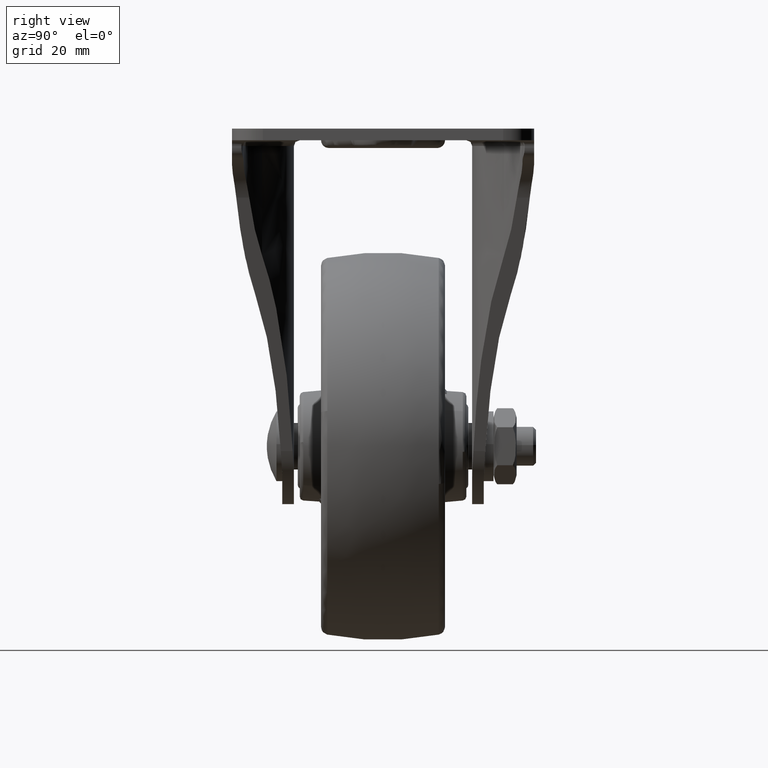
[diagram: clean part render]
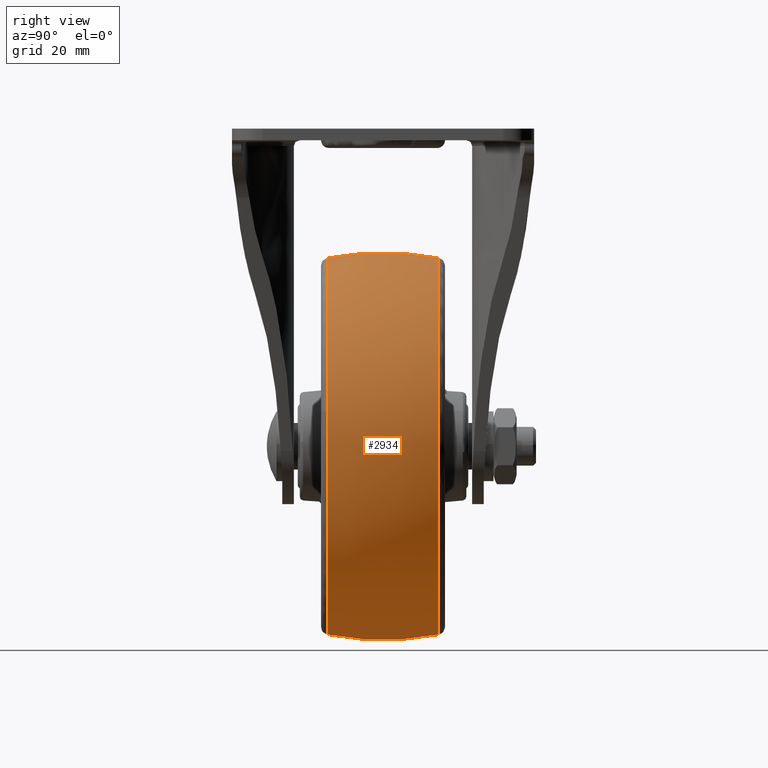
[diagram: same view with one face highlighted and labeled with its STEP entity id]
A machine part, right view. The second image highlights one B-rep face of the part: STEP entity #2934.
In plain terms, the highlighted face is a freeform B-spline surface patch.
Its self-contained STEP definition (entity closure, byte-faithful):
#2703=CARTESIAN_POINT('',(47.628639370068768,14.383559901206800,-9.707463138120371));
#2704=VERTEX_POINT('',#2703);
#2705=CARTESIAN_POINT('',(0.0,14.383559881590759,48.607849880892097));
#2706=VERTEX_POINT('',#2705);
#2707=CARTESIAN_POINT('',(47.628639370068768,14.383559901206803,-9.707463138120373));
#2708=CARTESIAN_POINT('',(48.607841783063982,14.383559900398687,-4.903114147076940));
#2709=CARTESIAN_POINT('',(48.607841778110057,14.383559899409290,0.000007981815209));
#2710=CARTESIAN_POINT('',(48.607841728998622,14.383559889600736,48.607849872716777));
#2711=CARTESIAN_POINT('',(0.0,14.383559881590759,48.607849880892097));
#2719=(BOUNDED_CURVE()B_SPLINE_CURVE(2,(#2707,#2708,#2709,#2710,#2711),.UNSPECIFIED.,.F.,.U.)B_SPLINE_CURVE_WITH_KNOTS((3,2,3),(0.215767038636052,0.250000000000000,0.500000000000000),.UNSPECIFIED.)CURVE()GEOMETRIC_REPRESENTATION_ITEM()RATIONAL_B_SPLINE_CURVE((0.930770871243497,0.959893591026387,1.0,0.707106781186548,1.0))REPRESENTATION_ITEM(''));
#2720=EDGE_CURVE('',#2704,#2706,#2719,.T.);
#2797=CARTESIAN_POINT('',(0.0,14.383559881593481,-48.607833880891633));
#2798=VERTEX_POINT('',#2797);
#2799=CARTESIAN_POINT('',(0.0,14.383559881593481,-48.607833880891633));
#2800=CARTESIAN_POINT('',(39.700127642834481,14.383559891400679,-48.607833890901318));
#2801=CARTESIAN_POINT('',(47.628639370068768,14.383559901206803,-9.707463138120373));
#2809=(BOUNDED_CURVE()B_SPLINE_CURVE(2,(#2799,#2800,#2801),.UNSPECIFIED.,.F.,.U.)B_SPLINE_CURVE_WITH_KNOTS((3,3),(0.0,0.215767038636052),.UNSPECIFIED.)CURVE()GEOMETRIC_REPRESENTATION_ITEM()RATIONAL_B_SPLINE_CURVE((1.0,0.747213190160160,0.930770871243497))REPRESENTATION_ITEM(''));
#2810=EDGE_CURVE('',#2798,#2704,#2809,.T.);
#2834=CARTESIAN_POINT('',(-1.350556731747524,-15.837283128318285,-48.308802084834859));
#2835=CARTESIAN_POINT('',(-1.397837108246814,-8.008939576927030,-50.000000000000007));
#2836=CARTESIAN_POINT('',(-1.397837108246814,-4.592275E-015,-50.000000000000021));
#2837=CARTESIAN_POINT('',(-1.397837108246815,8.008953372569184,-50.000000000000007));
#2838=CARTESIAN_POINT('',(-1.350556570700076,15.837309793369274,-48.308796324239637));
#2839=CARTESIAN_POINT('',(-0.679211018014401,-15.837283128318290,-48.308802084834866));
#2840=CARTESIAN_POINT('',(-0.702988880801871,-8.008939576927030,-50.000000000000014));
#2841=CARTESIAN_POINT('',(-0.702988880801871,-4.592275E-015,-50.000000000000014));
#2842=CARTESIAN_POINT('',(-0.702988880801871,8.008953372569184,-50.000000000000014));
#2843=CARTESIAN_POINT('',(-0.679210937021726,15.837309793369270,-48.308796324239637));
#2844=CARTESIAN_POINT('',(48.308810084834839,-15.837283128318285,-48.308802084834852));
#2845=CARTESIAN_POINT('',(50.000007999999987,-8.008939576927029,-50.000000000000021));
#2846=CARTESIAN_POINT('',(50.000008000000001,-4.592275E-015,-50.000000000000021));
#2847=CARTESIAN_POINT('',(50.000008000000008,8.008953372569184,-50.000000000000014));
#2848=CARTESIAN_POINT('',(48.308804324239624,15.837309793369275,-48.308796324239644));
#2849=CARTESIAN_POINT('',(48.308810084834846,-15.837283128318282,0.000007999999982));
#2850=CARTESIAN_POINT('',(50.000008000000001,-8.008939576927030,0.000007999999982));
#2851=CARTESIAN_POINT('',(50.000008000000001,-4.592275E-015,0.000007999999982));
#2852=CARTESIAN_POINT('',(50.000007999999994,8.008953372569184,0.000007999999982));
#2853=CARTESIAN_POINT('',(48.308804324239624,15.837309793369274,0.000007999999982));
#2854=CARTESIAN_POINT('',(48.308810084834839,-15.837283128318285,48.308818084834826));
#2855=CARTESIAN_POINT('',(50.000007999999987,-8.008939576927029,50.000015999999988));
#2856=CARTESIAN_POINT('',(50.000008000000001,-4.592275E-015,50.000015999999974));
#2857=CARTESIAN_POINT('',(50.000008000000008,8.008953372569184,50.000015999999981));
#2858=CARTESIAN_POINT('',(48.308804324239624,15.837309793369275,48.308812324239611));
#2859=CARTESIAN_POINT('',(-0.679211018014393,-15.837283128318290,48.308818084834819));
#2860=CARTESIAN_POINT('',(-0.702988880801863,-8.008939576927030,50.000015999999988));
#2861=CARTESIAN_POINT('',(-0.702988880801863,-4.592275E-015,50.000015999999981));
#2862=CARTESIAN_POINT('',(-0.702988880801863,8.008953372569184,50.000015999999988));
#2863=CARTESIAN_POINT('',(-0.679210937021718,15.837309793369272,48.308812324239597));
#2864=CARTESIAN_POINT('',(-1.350556731747509,-15.837283128318289,48.308818084834826));
#2865=CARTESIAN_POINT('',(-1.397837108246799,-8.008939576927030,50.000015999999995));
#2866=CARTESIAN_POINT('',(-1.397837108246798,-4.592275E-015,50.000015999999981));
#2867=CARTESIAN_POINT('',(-1.397837108246799,8.008953372569186,50.000015999999988));
#2868=CARTESIAN_POINT('',(-1.350556570700060,15.837309793369279,48.308812324239604));
#2876=(BOUNDED_SURFACE()B_SPLINE_SURFACE(2,2,((#2834,#2839,#2844,#2849,#2854,#2859,#2864),(#2835,#2840,#2845,#2850,#2855,#2860,#2865),(#2836,#2841,#2846,#2851,#2856,#2861,#2866),(#2837,#2842,#2847,#2852,#2857,#2862,#2867),(#2838,#2843,#2848,#2853,#2858,#2863,#2868)),.UNSPECIFIED.,.F.,.F.,.U.)B_SPLINE_SURFACE_WITH_KNOTS((3,2,3),(3,1,2,1,3),(0.0,16.374810083202000,32.749647446606659),(0.0,1.656854514589062,84.499580244042079,167.342305973495090,168.999160488084190),.UNSPECIFIED.)GEOMETRIC_REPRESENTATION_ITEM()RATIONAL_B_SPLINE_SURFACE(((0.957175814653070,0.951633738013225,0.668987829381165,0.946091661373381,0.668987829381165,0.951633738013225,0.957175814653069),(0.978504761268069,0.972839189388398,0.683895023525145,0.967173617508726,0.683895023525145,0.972839189388398,0.978504761268069),(1.011715728752538,1.005857864376269,0.707106781186548,1.0,0.707106781186548,1.005857864376269,1.011715728752538),(0.978504705939066,0.972839134379751,0.683894984854684,0.967173562820436,0.683894984854684,0.972839134379751,0.978504705939066),(0.957175743585654,0.951633667357292,0.668987779710837,0.946091591128930,0.668987779710837,0.951633667357292,0.957175743585654)))REPRESENTATION_ITEM('')SURFACE());
#2877=CARTESIAN_POINT('',(0.0,-14.383530911737729,-48.607839541820809));
#2878=VERTEX_POINT('',#2877);
#2879=CARTESIAN_POINT('',(0.0,-14.383530911737729,-48.607839541820809));
#2880=CARTESIAN_POINT('',(0.0,-11.350268047597011,-49.200663250785468));
#2881=CARTESIAN_POINT('',(0.0,-5.584775194131471,-49.961087456463403));
#2882=CARTESIAN_POINT('',(0.0,4.077157376454125,-50.106803332659567));
#2883=CARTESIAN_POINT('',(0.0,10.610484041935450,-49.345389541014491));
#2884=CARTESIAN_POINT('',(0.0,14.383559881593481,-48.607833880891633));
#2885=B_SPLINE_CURVE_WITH_KNOTS('',3,(#2879,#2880,#2881,#2882,#2883,#2884),.UNSPECIFIED.,.F.,.U.,(4,1,1,4),(-0.000000011663843,9.271941467826046,17.413007833557991,28.946427218506908),.UNSPECIFIED.);
#2886=EDGE_CURVE('',#2878,#2798,#2885,.T.);
#2887=ORIENTED_EDGE('',*,*,#2886,.T.);
#2888=ORIENTED_EDGE('',*,*,#2810,.T.);
#2889=ORIENTED_EDGE('',*,*,#2720,.T.);
#2890=CARTESIAN_POINT('',(0.0,-14.383530907196530,48.607855518904110));
#2891=VERTEX_POINT('',#2890);
#2892=CARTESIAN_POINT('',(0.0,-14.383530907196530,48.607855518904110));
#2893=CARTESIAN_POINT('',(0.0,-11.350267463024920,49.200677549809711));
#2894=CARTESIAN_POINT('',(0.0,-6.483297507539522,49.842566426609253));
#2895=CARTESIAN_POINT('',(0.0,1.055603404408295,50.092706270328762));
#2896=CARTESIAN_POINT('',(0.0,7.612675871814449,49.726576798027821));
#2897=CARTESIAN_POINT('',(0.0,12.312042700785270,49.012653145511457));
#2898=CARTESIAN_POINT('',(0.0,14.383559881590759,48.607849880892097));
#2899=B_SPLINE_CURVE_WITH_KNOTS('',3,(#2892,#2893,#2894,#2895,#2896,#2897,#2898),.UNSPECIFIED.,.F.,.U.,(4,1,1,1,4),(-0.000000011664095,9.271941466379779,14.699278650893350,22.614325872990570,28.946427213989420),.UNSPECIFIED.);
#2900=EDGE_CURVE('',#2891,#2706,#2899,.T.);
#2901=ORIENTED_EDGE('',*,*,#2900,.F.);
#2902=CARTESIAN_POINT('',(47.746865974415698,-14.383531458872019,9.108209808613051));
#2903=VERTEX_POINT('',#2902);
#2904=CARTESIAN_POINT('',(47.746865974415705,-14.383531458872017,9.108209808613051));
#2905=CARTESIAN_POINT('',(40.211905944229144,-14.383531182111678,48.607855782523309));
#2906=CARTESIAN_POINT('',(0.0,-14.383530907196530,48.607855518904110));
#2914=(BOUNDED_CURVE()B_SPLINE_CURVE(2,(#2904,#2905,#2906),.UNSPECIFIED.,.F.,.U.)B_SPLINE_CURVE_WITH_KNOTS((3,3),(0.282161362535339,0.500000000000000),.UNSPECIFIED.)CURVE()GEOMETRIC_REPRESENTATION_ITEM()RATIONAL_B_SPLINE_CURVE((0.934335801641318,0.744786161164155,1.0))REPRESENTATION_ITEM(''));
#2915=EDGE_CURVE('',#2903,#2891,#2914,.T.);
#2916=ORIENTED_EDGE('',*,*,#2915,.F.);
#2917=CARTESIAN_POINT('',(0.0,-14.383530911737729,-48.607839541820809));
#2918=CARTESIAN_POINT('',(48.607842657771087,-14.383531139167321,-48.607839323736002));
#2919=CARTESIAN_POINT('',(48.607844039712013,-14.383531411811919,0.000008470245688));
#2920=CARTESIAN_POINT('',(48.607844170343867,-14.383531437584418,4.594802347605723));
#2921=CARTESIAN_POINT('',(47.746865974415705,-14.383531458872017,9.108209808613051));
#2929=(BOUNDED_CURVE()B_SPLINE_CURVE(2,(#2917,#2918,#2919,#2920,#2921),.UNSPECIFIED.,.F.,.U.)B_SPLINE_CURVE_WITH_KNOTS((3,2,3),(0.0,0.250000000000000,0.282161362535339),.UNSPECIFIED.)CURVE()GEOMETRIC_REPRESENTATION_ITEM()RATIONAL_B_SPLINE_CURVE((1.0,0.707106781186548,1.0,0.962320620022392,0.934335801641318))REPRESENTATION_ITEM(''));
#2930=EDGE_CURVE('',#2878,#2903,#2929,.T.);
#2931=ORIENTED_EDGE('',*,*,#2930,.F.);
#2932=EDGE_LOOP('',(#2887,#2888,#2889,#2901,#2916,#2931));
#2933=FACE_OUTER_BOUND('',#2932,.T.);
#2934=ADVANCED_FACE('',(#2933),#2876,.T.);